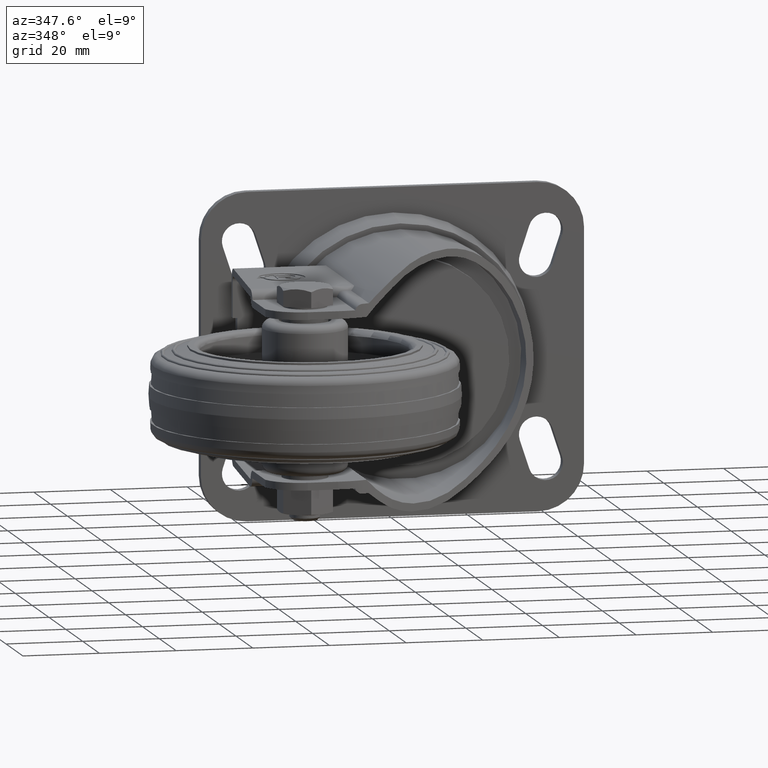
[diagram: clean part render]
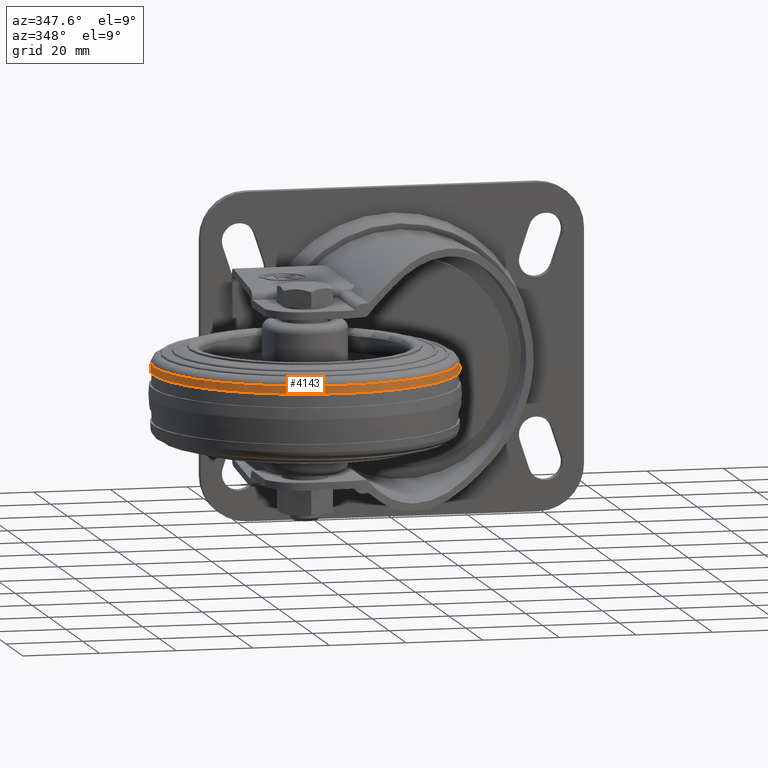
[diagram: same view with one face highlighted and labeled with its STEP entity id]
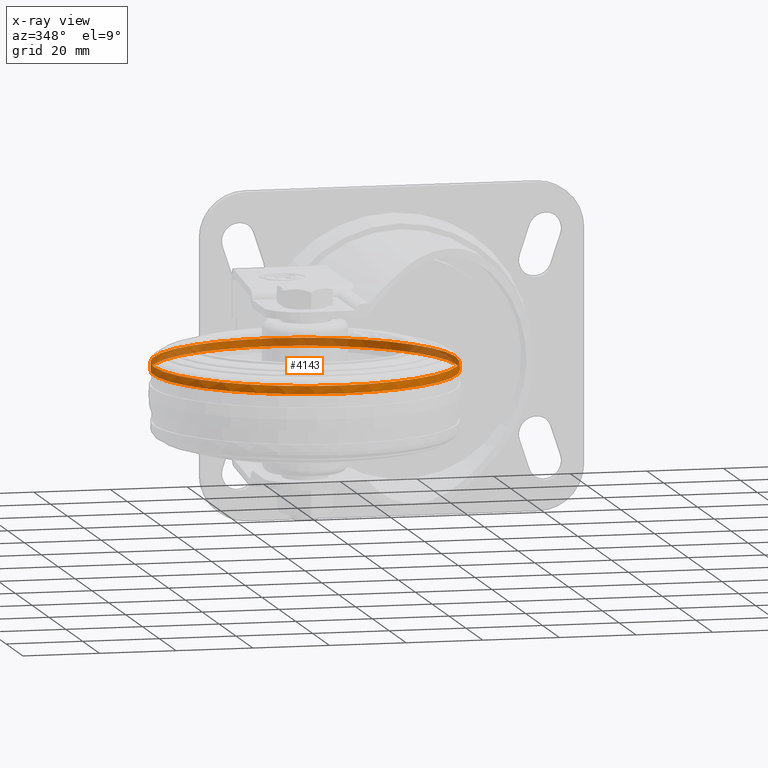
[diagram: x-ray of the same camera — body ghosted, the highlighted face saturated]
A machine part, auxiliary view. The second image highlights one B-rep face of the part: STEP entity #4143.
The next image is the same camera in x-ray: the body ghosted, the highlighted face saturated — about 29% of this face is hidden behind the body in this view.
In plain terms, the highlighted conical surface has half-angle 4 deg.
Its self-contained STEP definition (entity closure, byte-faithful):
#102=CONICAL_SURFACE('',#4473,39.399684210328,4.00000000000022);
#260=FACE_BOUND('',#870,.T.);
#382=CIRCLE('',#4472,39.5454757223672);
#383=CIRCLE('',#4474,39.399684210328);
#553=FACE_OUTER_BOUND('',#869,.T.);
#869=EDGE_LOOP('',(#2951));
#870=EDGE_LOOP('',(#2952));
#1921=VERTEX_POINT('',#6323);
#1922=VERTEX_POINT('',#6326);
#2334=EDGE_CURVE('',#1921,#1921,#382,.T.);
#2335=EDGE_CURVE('',#1922,#1922,#383,.T.);
#2951=ORIENTED_EDGE('',*,*,#2334,.T.);
#2952=ORIENTED_EDGE('',*,*,#2335,.F.);
#4143=ADVANCED_FACE('',(#553,#260),#102,.T.);
#4472=AXIS2_PLACEMENT_3D('',#6324,#5071,#5072);
#4473=AXIS2_PLACEMENT_3D('',#6325,#5073,#5074);
#4474=AXIS2_PLACEMENT_3D('',#6327,#5075,#5076);
#5071=DIRECTION('center_axis',(0.,0.,1.));
#5072=DIRECTION('ref_axis',(1.,0.,0.));
#5073=DIRECTION('center_axis',(0.,0.,-1.));
#5074=DIRECTION('ref_axis',(-1.,0.,0.));
#5075=DIRECTION('center_axis',(0.,0.,1.));
#5076=DIRECTION('ref_axis',(1.,0.,0.));
#6323=CARTESIAN_POINT('',(39.5454757223672,0.,6.5));
#6324=CARTESIAN_POINT('Origin',(0.,0.,6.5));
#6325=CARTESIAN_POINT('Origin',(0.,0.,8.584915756734));
#6326=CARTESIAN_POINT('',(39.399684210328,0.,8.584915756734));
#6327=CARTESIAN_POINT('Origin',(0.,0.,8.584915756734));